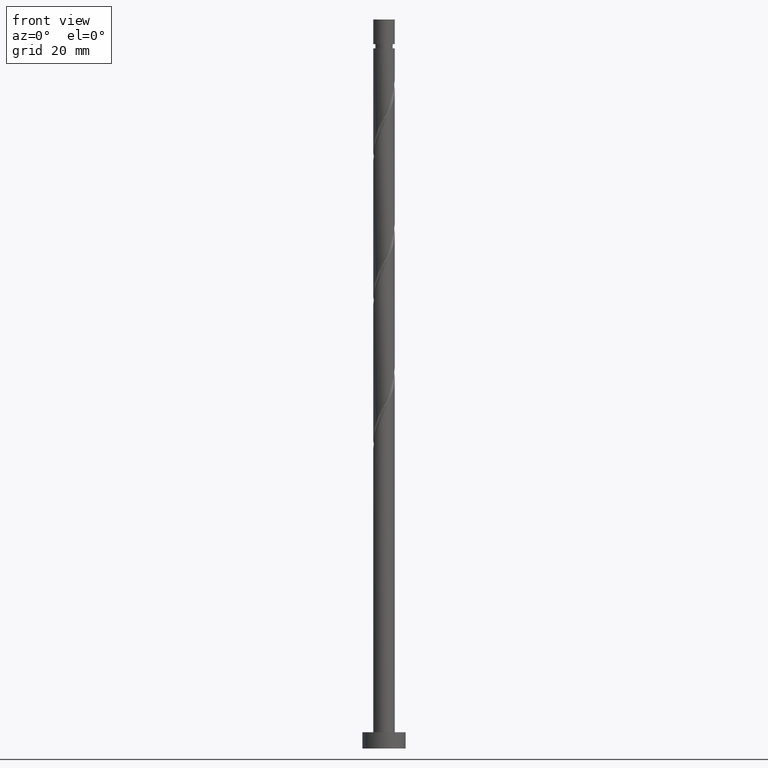
[diagram: clean part render]
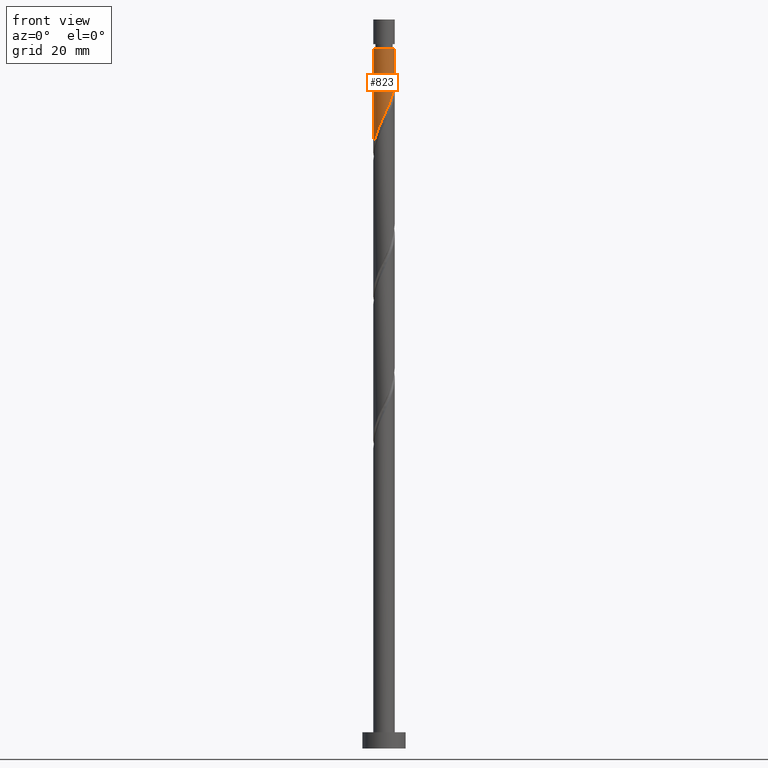
[diagram: same view with one face highlighted and labeled with its STEP entity id]
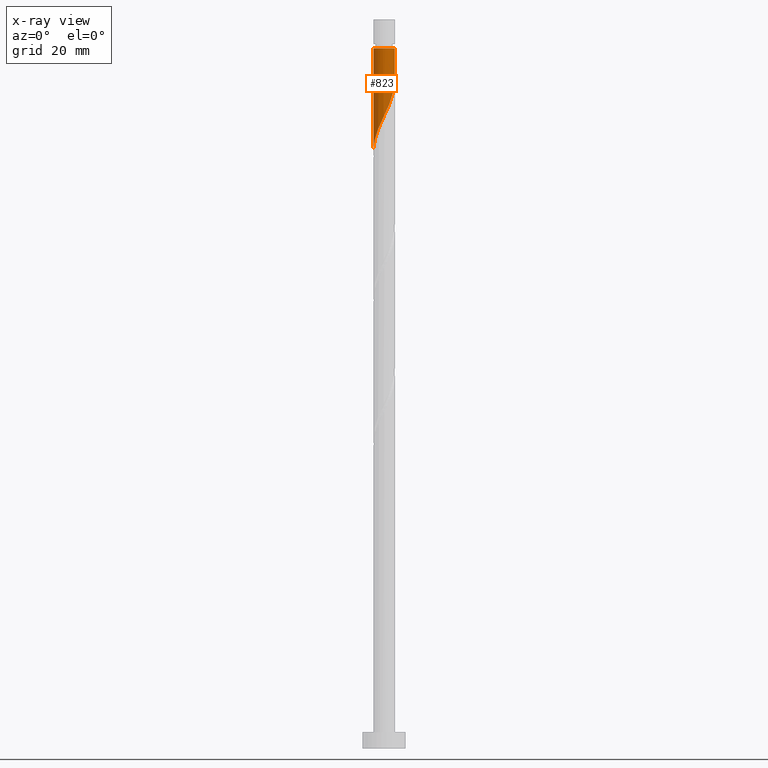
[diagram: x-ray of the same camera — body ghosted, the highlighted face saturated]
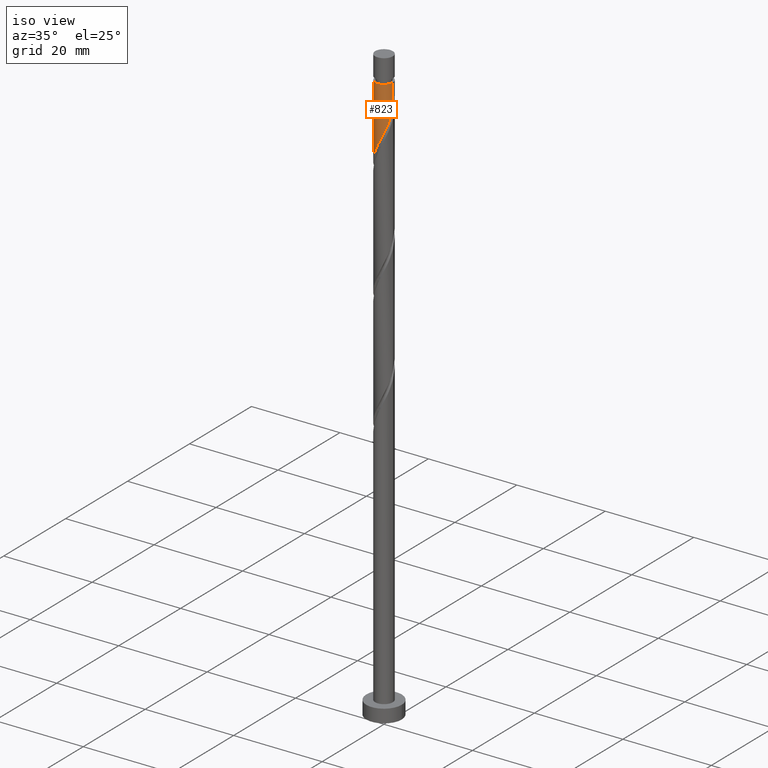
[diagram: same view with one face highlighted and labeled with its STEP entity id]
A machine part, front view. The second image highlights one B-rep face of the part: STEP entity #823.
The next image is the same camera in x-ray: the body ghosted, the highlighted face saturated — about 0% of this face is hidden behind the body in this view.
A second angle (iso view) of the same face is appended — the face is thin or edge-on in the first view.
In plain terms, the highlighted cylindrical surface (edge-blend (fillet) strip) has radius 2 mm, axis along (-0, -0, -1).
Its self-contained STEP definition (entity closure, byte-faithful):
#16 = CARTESIAN_POINT ( 'NONE',  ( -1.999999999999996669, 0.000000000000000000, 129.6587008272105095 ) ) ;
#26 = EDGE_LOOP ( 'NONE', ( #684, #172, #410, #1081 ) ) ;
#82 = CARTESIAN_POINT ( 'NONE',  ( 0.1703224295138023869, -1.992734370156875157, 117.5374887059983706 ) ) ;
#103 = CARTESIAN_POINT ( 'NONE',  ( 1.220637884402354656, -1.584311571365223825, 119.9617311302408069 ) ) ;
#137 = CARTESIAN_POINT ( 'NONE',  ( -0.3979949748426481193, -1.960000000000000409, 116.3253674938771809 ) ) ;
#172 = ORIENTED_EDGE ( 'NONE', *, *, #528, .T. ) ;
#187 = CARTESIAN_POINT ( 'NONE',  ( 0.000000000000000000, 0.000000000000000000, 129.6587008272105095 ) ) ;
#189 = VERTEX_POINT ( 'NONE', #498 ) ;
#268 = VERTEX_POINT ( 'NONE', #1293 ) ;
#297 = VERTEX_POINT ( 'NONE', #16 ) ;
#321 = DIRECTION ( 'NONE',  ( -0.000000000000000000, -0.000000000000000000, -1.000000000000000000 ) ) ;
#344 = CARTESIAN_POINT ( 'NONE',  ( 1.617545623245912001, -1.176242388590886812, 121.1738523423620109 ) ) ;
#351 = AXIS2_PLACEMENT_3D ( 'NONE', #187, #703, #1222 ) ;
#379 = CARTESIAN_POINT ( 'NONE',  ( -2.000000000000000888, 1.420897966832164405E-15, 110.5081553065113980 ) ) ;
#410 = ORIENTED_EDGE ( 'NONE', *, *, #1242, .T. ) ;
#447 = VECTOR ( 'NONE', #1631, 1000.000000000000000 ) ;
#452 = DIRECTION ( 'NONE',  ( -1.000000000000000000, 0.000000000000000000, 0.000000000000000000 ) ) ;
#465 = CARTESIAN_POINT ( 'NONE',  ( 1.786663747202082542, -0.9436744384215538517, 121.7799129484226341 ) ) ;
#492 = CARTESIAN_POINT ( 'NONE',  ( -1.741900447066338176, -0.9827425057002938669, 112.6890038575135122 ) ) ;
#498 = CARTESIAN_POINT ( 'NONE',  ( -2.000000000000000888, 1.420897966832164405E-15, 110.5081553065113980 ) ) ;
#528 = EDGE_CURVE ( 'NONE', #268, #297, #1213, .T. ) ;
#545 = AXIS2_PLACEMENT_3D ( 'NONE', #1109, #321, #452 ) ;
#575 = CARTESIAN_POINT ( 'NONE',  ( 2.000000000000000000, 9.273228836167808411E-16, 123.8414886398447408 ) ) ;
#639 = CARTESIAN_POINT ( 'NONE',  ( -1.883197487972271933, -0.7322950311120145495, 112.0829432514529174 ) ) ;
#684 = ORIENTED_EDGE ( 'NONE', *, *, #1289, .F. ) ;
#703 = DIRECTION ( 'NONE',  ( -0.000000000000000000, -0.000000000000000000, -1.000000000000000000 ) ) ;
#706 = CARTESIAN_POINT ( 'NONE',  ( 0.7248413235775366115, -1.864029252891264532, 118.7496099181196030 ) ) ;
#713 = CARTESIAN_POINT ( 'NONE',  ( 1.883409435608316862, -0.6728810428757543427, 122.3859735544832290 ) ) ;
#743 = FACE_OUTER_BOUND ( 'NONE', #26, .T. ) ;
#771 =( BOUNDED_CURVE ( )  B_SPLINE_CURVE ( 2, ( #575, #1254, #1005, #1349, #713, #465, #344, #1520, #103, #1232, #706, #1225, #82, #1620, #137, #900, #1174, #880, #1019, #1535, #492, #639, #1269, #1167, #379 ),
 .UNSPECIFIED., .F., .T. ) 
 B_SPLINE_CURVE_WITH_KNOTS ( ( 3, 2, 2, 2, 2, 2, 2, 2, 2, 2, 2, 2, 3 ),
 ( 0.3045252162417514397, 0.3068181818181818232, 0.3181818181818181768, 0.3295454545454545303, 0.3409090909090908839, 0.3522727272727272929, 0.3636363636363636465, 0.3750000000000000000, 0.3863636363636363535, 0.3977272727272727071, 0.4090909090909091161, 0.4204545454545454697, 0.4295252162417513841 ),
 .UNSPECIFIED. ) 
 CURVE ( )  GEOMETRIC_REPRESENTATION_ITEM ( )  RATIONAL_B_SPLINE_CURVE ( ( 0.9061101570135572381, 0.9072237824201394574, 0.9090909090909168322, 0.8998376744372191816, 0.9090909090909168322, 0.8998376744372191816, 0.9090909090909168322, 0.8998376744372191816, 0.9090909090909168322, 0.8998376744372191816, 0.9090909090909168322, 0.8998376744372191816, 0.9090909090909168322, 0.8998376744372191816, 0.9090909090909168322, 0.8998376744372191816, 0.9090909090909168322, 0.8998376744372191816, 0.9090909090909168322, 0.8998376744372191816, 0.9090909090909168322, 0.8998376744372191816, 0.9090909090909168322, 0.9017048011079966674, 0.9061101570135572381 ) ) 
 REPRESENTATION_ITEM ( '' )  );
#797 = VERTEX_POINT ( 'NONE', #1243 ) ;
#799 = LINE ( 'NONE', #1324, #1514 ) ;
#823 = ADVANCED_FACE ( 'NONE', ( #743 ), #1358, .T. ) ;
#864 = EDGE_CURVE ( 'NONE', #797, #189, #771, .T. ) ;
#880 = CARTESIAN_POINT ( 'NONE',  ( -1.188337955536407531, -1.634179211325359038, 114.5071856756953963 ) ) ;
#900 = CARTESIAN_POINT ( 'NONE',  ( -0.6798004310727958632, -1.902776961498552355, 115.7193068878165434 ) ) ;
#958 = LINE ( 'NONE', #1099, #447 ) ;
#1005 = CARTESIAN_POINT ( 'NONE',  ( 1.996690616564939846, -0.1150068768444769546, 123.5980947666044472 ) ) ;
#1019 = CARTESIAN_POINT ( 'NONE',  ( -1.394470680848406197, -1.433684595806965723, 113.9011250696347588 ) ) ;
#1040 = DIRECTION ( 'NONE',  ( -0.000000000000000000, -0.000000000000000000, -1.000000000000000000 ) ) ;
#1081 = ORIENTED_EDGE ( 'NONE', *, *, #864, .F. ) ;
#1099 = CARTESIAN_POINT ( 'NONE',  ( 2.000000000000000000, 2.449293598294706414E-16, 135.0000000000000000 ) ) ;
#1109 = CARTESIAN_POINT ( 'NONE',  ( 0.000000000000000000, 0.000000000000000000, 135.0000000000000000 ) ) ;
#1167 = CARTESIAN_POINT ( 'NONE',  ( -2.000000000000000444, -0.2290578547702451784, 110.9941152594826974 ) ) ;
#1174 = CARTESIAN_POINT ( 'NONE',  ( -0.9340691933046015860, -1.768478086411955363, 115.1132462817559627 ) ) ;
#1213 = CIRCLE ( 'NONE', #351, 1.999999999999996669 ) ;
#1222 = DIRECTION ( 'NONE',  ( -1.000000000000000000, 0.000000000000000000, 0.000000000000000000 ) ) ;
#1225 = CARTESIAN_POINT ( 'NONE',  ( 0.4568343776401063705, -1.968245701812300963, 118.1435493120589939 ) ) ;
#1232 = CARTESIAN_POINT ( 'NONE',  ( 0.9928482695149674075, -1.759812803970228101, 119.3556705241802121 ) ) ;
#1242 = EDGE_CURVE ( 'NONE', #297, #189, #799, .T. ) ;
#1243 = CARTESIAN_POINT ( 'NONE',  ( 2.000000000000000000, 9.273228836167808411E-16, 123.8414886398447265 ) ) ;
#1254 = CARTESIAN_POINT ( 'NONE',  ( 2.000000000000000444, -0.05755105304764733531, 123.7193906351265156 ) ) ;
#1269 = CARTESIAN_POINT ( 'NONE',  ( -1.948211798543800111, -0.4521844623765081117, 111.4768826453922799 ) ) ;
#1289 = EDGE_CURVE ( 'NONE', #268, #797, #958, .T. ) ;
#1293 = CARTESIAN_POINT ( 'NONE',  ( 1.999999999999996669, 2.449293598294703949E-16, 129.6587008272105095 ) ) ;
#1324 = CARTESIAN_POINT ( 'NONE',  ( -2.000000000000000000, 0.000000000000000000, 135.0000000000000000 ) ) ;
#1349 = CARTESIAN_POINT ( 'NONE',  ( 1.980155124014551626, -0.4020876473299551668, 122.9920341605438523 ) ) ;
#1358 = CYLINDRICAL_SURFACE ( 'NONE', #545, 2.000000000000000000 ) ;
#1514 = VECTOR ( 'NONE', #1040, 1000.000000000000000 ) ;
#1520 = CARTESIAN_POINT ( 'NONE',  ( 1.448427499289742570, -1.408810338760219549, 120.5677917363014018 ) ) ;
#1535 = CARTESIAN_POINT ( 'NONE',  ( -1.600603406160404862, -1.233189980288573295, 113.2950644635741497 ) ) ;
#1620 = CARTESIAN_POINT ( 'NONE',  ( -0.1161895186125006946, -2.017223038501449128, 116.9314280999378184 ) ) ;
#1631 = DIRECTION ( 'NONE',  ( -0.000000000000000000, -0.000000000000000000, -1.000000000000000000 ) ) ;